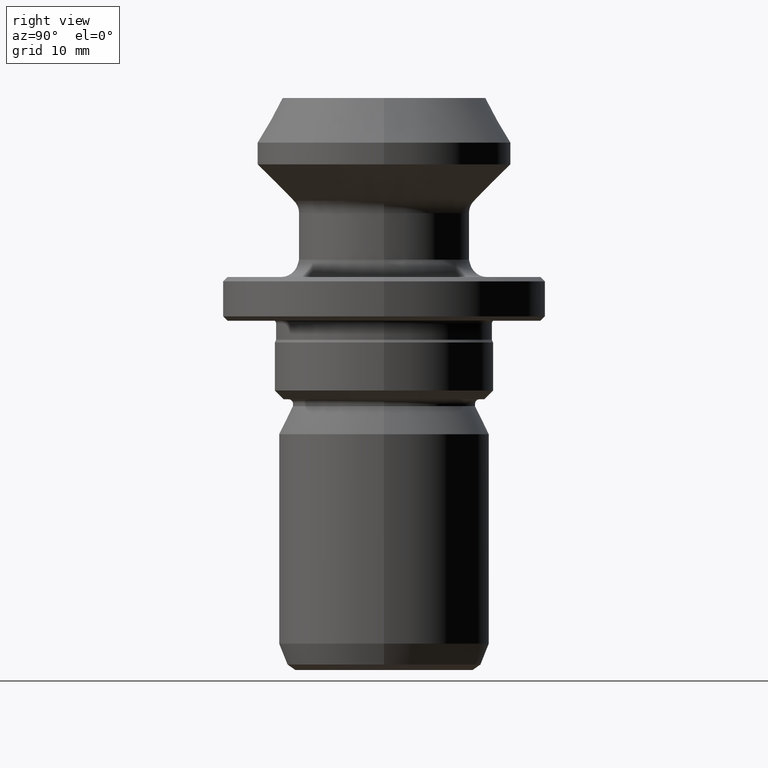
[diagram: clean part render]
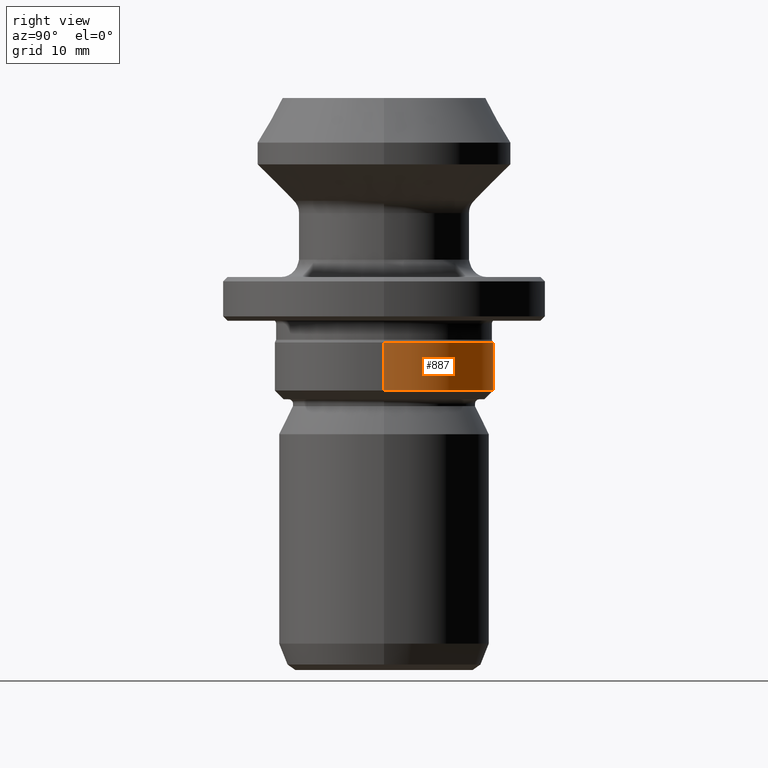
[diagram: same view with one face highlighted and labeled with its STEP entity id]
A machine part, right view. The second image highlights one B-rep face of the part: STEP entity #887.
In plain terms, the highlighted cylindrical surface (partial cylindrical patch) has radius 12.5 mm, axis along (-0, -0, 1).
Its self-contained STEP definition (entity closure, byte-faithful):
#25 = VECTOR ( 'NONE', #1174, 1000.000000000000000 ) ;
#30 = ORIENTED_EDGE ( 'NONE', *, *, #1238, .T. ) ;
#51 = DIRECTION ( 'NONE',  ( 1.000000000000000000, 0.0000000000000000000, 0.0000000000000000000 ) ) ;
#64 = AXIS2_PLACEMENT_3D ( 'NONE', #1022, #596, #51 ) ;
#110 = CARTESIAN_POINT ( 'NONE',  ( 12.49999999999999600, 0.0000000000000000000, 0.0000000000000000000 ) ) ;
#111 = DIRECTION ( 'NONE',  ( -0.0000000000000000000, -0.0000000000000000000, 1.000000000000000000 ) ) ;
#115 = VECTOR ( 'NONE', #536, 1000.000000000000000 ) ;
#120 = CARTESIAN_POINT ( 'NONE',  ( 0.0000000000000000000, 0.0000000000000000000, -28.00000000000000000 ) ) ;
#148 = CYLINDRICAL_SURFACE ( 'NONE', #64, 12.49999999999999600 ) ;
#168 = CARTESIAN_POINT ( 'NONE',  ( 0.0000000000000000000, 0.0000000000000000000, -33.49999999999999300 ) ) ;
#179 = CARTESIAN_POINT ( 'NONE',  ( 12.50000000000000000, 0.0000000000000000000, -28.00000000000000000 ) ) ;
#222 = CARTESIAN_POINT ( 'NONE',  ( 12.49999999999999500, 0.0000000000000000000, -33.49999999999999300 ) ) ;
#254 = DIRECTION ( 'NONE',  ( 1.000000000000000000, 0.0000000000000000000, 0.0000000000000000000 ) ) ;
#352 = CARTESIAN_POINT ( 'NONE',  ( -12.49999999999999500, 1.530808498934190900E-015, -33.49999999999999300 ) ) ;
#354 = LINE ( 'NONE', #1042, #115 ) ;
#376 = CIRCLE ( 'NONE', #943, 12.50000000000000000 ) ;
#476 = DIRECTION ( 'NONE',  ( 1.000000000000000000, 0.0000000000000000000, 0.0000000000000000000 ) ) ;
#530 = CARTESIAN_POINT ( 'NONE',  ( -12.50000000000000000, 1.530808498934191500E-015, -28.00000000000000000 ) ) ;
#536 = DIRECTION ( 'NONE',  ( -0.0000000000000000000, -0.0000000000000000000, 1.000000000000000000 ) ) ;
#545 = ORIENTED_EDGE ( 'NONE', *, *, #1184, .T. ) ;
#580 = VERTEX_POINT ( 'NONE', #352 ) ;
#596 = DIRECTION ( 'NONE',  ( -0.0000000000000000000, -0.0000000000000000000, 1.000000000000000000 ) ) ;
#632 = VERTEX_POINT ( 'NONE', #179 ) ;
#654 = CIRCLE ( 'NONE', #849, 12.49999999999999500 ) ;
#662 = VERTEX_POINT ( 'NONE', #530 ) ;
#744 = LINE ( 'NONE', #110, #25 ) ;
#827 = DIRECTION ( 'NONE',  ( -0.0000000000000000000, -0.0000000000000000000, 1.000000000000000000 ) ) ;
#833 = ORIENTED_EDGE ( 'NONE', *, *, #976, .F. ) ;
#849 = AXIS2_PLACEMENT_3D ( 'NONE', #168, #827, #254 ) ;
#887 = ADVANCED_FACE ( 'NONE', ( #904 ), #148, .T. ) ;
#904 = FACE_OUTER_BOUND ( 'NONE', #1036, .T. ) ;
#943 = AXIS2_PLACEMENT_3D ( 'NONE', #120, #111, #476 ) ;
#976 = EDGE_CURVE ( 'NONE', #1085, #632, #744, .T. ) ;
#1022 = CARTESIAN_POINT ( 'NONE',  ( 0.0000000000000000000, 0.0000000000000000000, 0.0000000000000000000 ) ) ;
#1036 = EDGE_LOOP ( 'NONE', ( #545, #30, #1129, #833 ) ) ;
#1042 = CARTESIAN_POINT ( 'NONE',  ( -12.49999999999999600, 1.530808498934191100E-015, 0.0000000000000000000 ) ) ;
#1054 = EDGE_CURVE ( 'NONE', #632, #662, #376, .T. ) ;
#1085 = VERTEX_POINT ( 'NONE', #222 ) ;
#1129 = ORIENTED_EDGE ( 'NONE', *, *, #1054, .F. ) ;
#1174 = DIRECTION ( 'NONE',  ( -0.0000000000000000000, -0.0000000000000000000, 1.000000000000000000 ) ) ;
#1184 = EDGE_CURVE ( 'NONE', #1085, #580, #654, .T. ) ;
#1238 = EDGE_CURVE ( 'NONE', #580, #662, #354, .T. ) ;